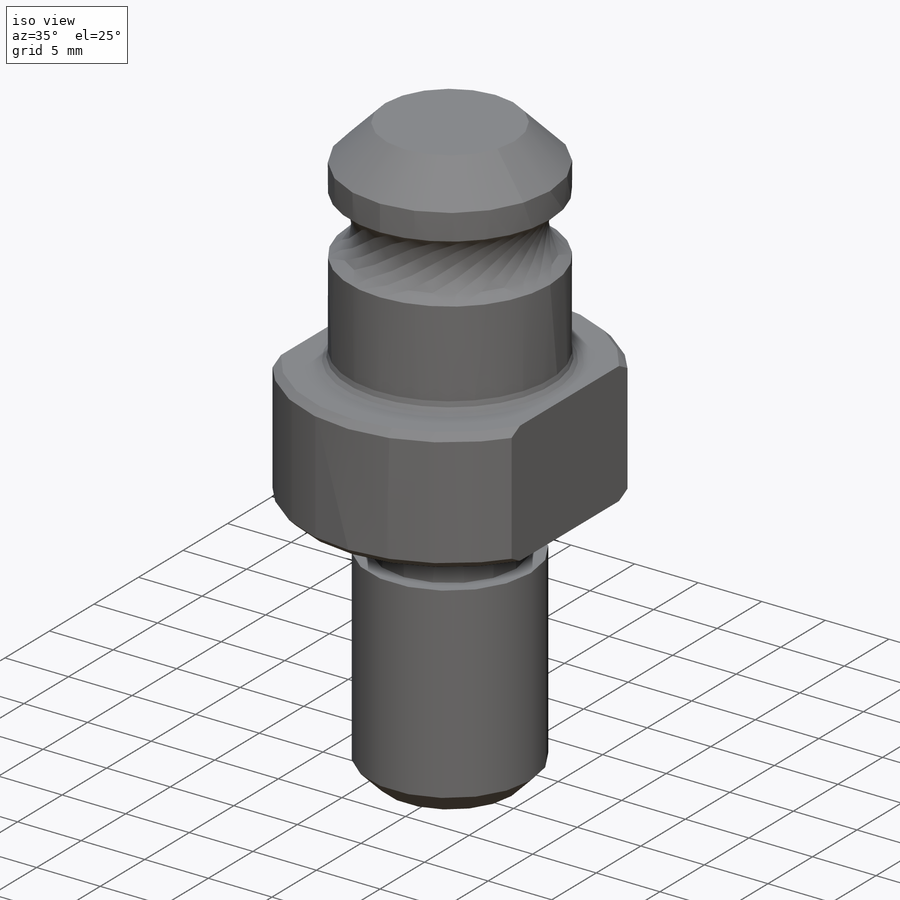
[diagram: iso view]
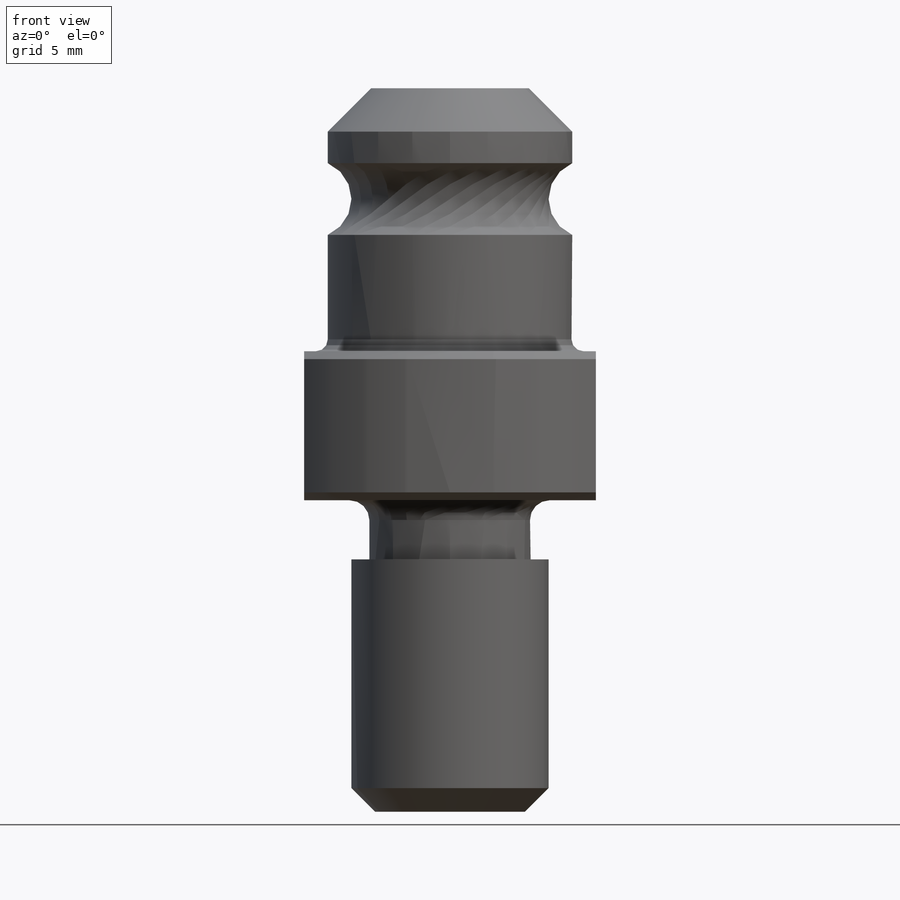
[diagram: front view]
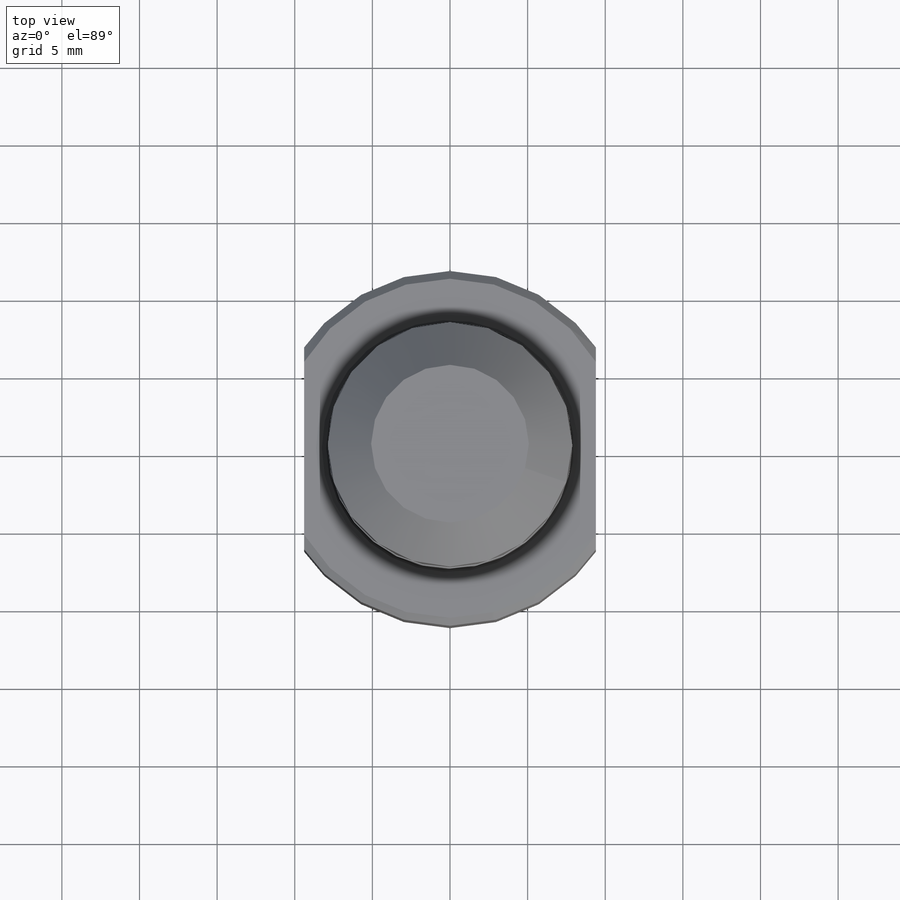
[diagram: top view]
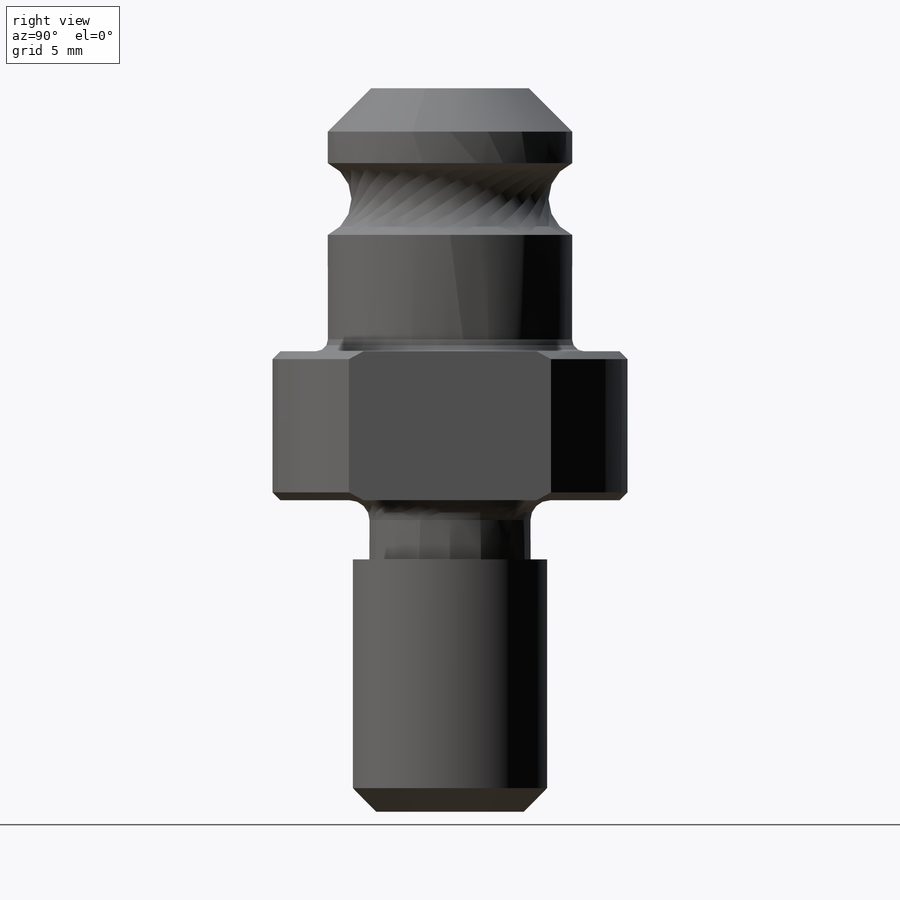
[diagram: right view]
SOLIDWORKS PART (.sldprt)
format: sldprt  version: not decoded by parser v0  size: 159,744 bytes
history: native  units: mm
features: sketch x2, chamfer x2, material x1, revolve x1, cut_extrude x1, fillet x1 (+13 scaffold rows collapsed)
feature tree (21):
  scaffold x13  (default folders/planes/origin — collapsed)
  material  "Material <not specified>"
  sketch  "Sketch1"  dims[c1.D13=~4.22757mm c1.D14=1.27mm c1.D1=12.7mm c1.D2=10.3886mm c1.D3=22.86mm c1.D4=15.748mm c1.D5=20.066mm c1.D6=9.6012mm c1.D7=3.81mm c1.D8=~3.239158mm c2.D8=45.0deg c2.D9=10.16mm c2.D10=26.543mm c2.D11=7.493mm c2.D12=4.6228mm c2.D13=12.7mm]
  revolve  "Revolve1"  Angle=360deg
  chamfer  "Chamfer1"  Distance=0.508mm Angle=45deg
  chamfer  "Chamfer2"  Distance=1.524mm Angle=45deg
  sketch  "Sketch2"  dims[D1=9.398mm D2=9.398mm]
  cut_extrude  "Cut-Extrude1"  [1 undecoded]
  fillet  "Fillet1"  Radius=0.762mm
decode coverage: 6 of 7 modeling features carry decoded parameters
note: ~ marks probable driven/reference dimensions
note: 1 parameter value undecoded
note: suppression state not decoded; provenance and decode notes live in map.json
